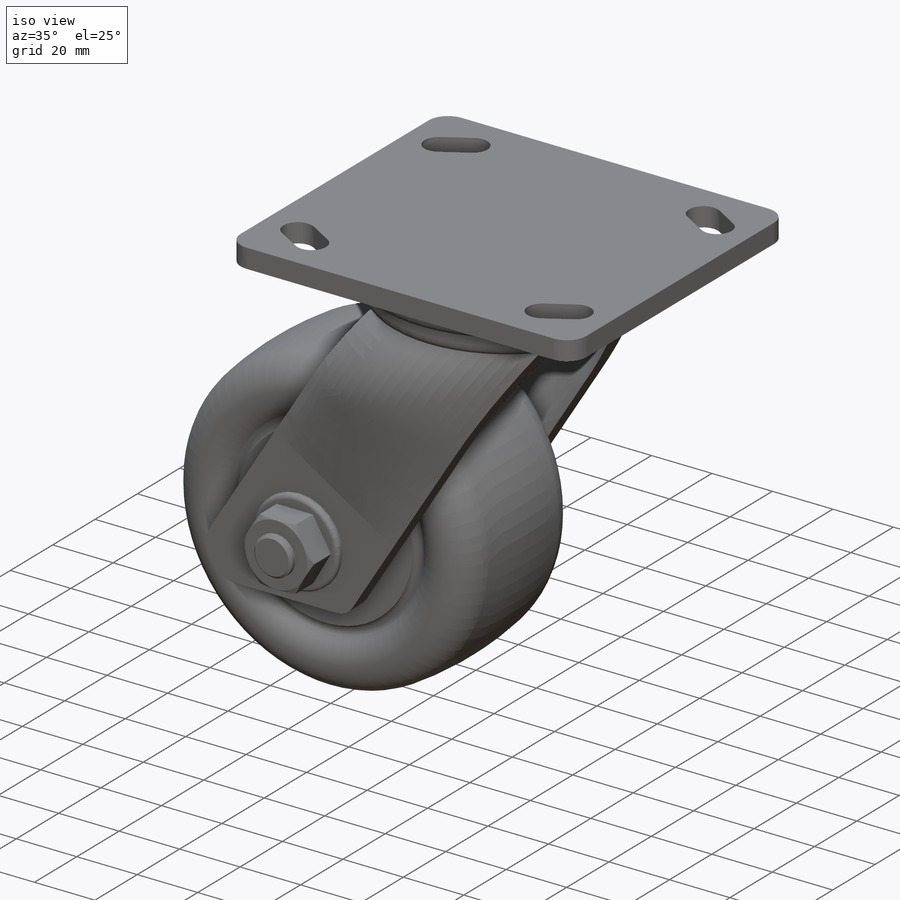
[diagram: iso view]
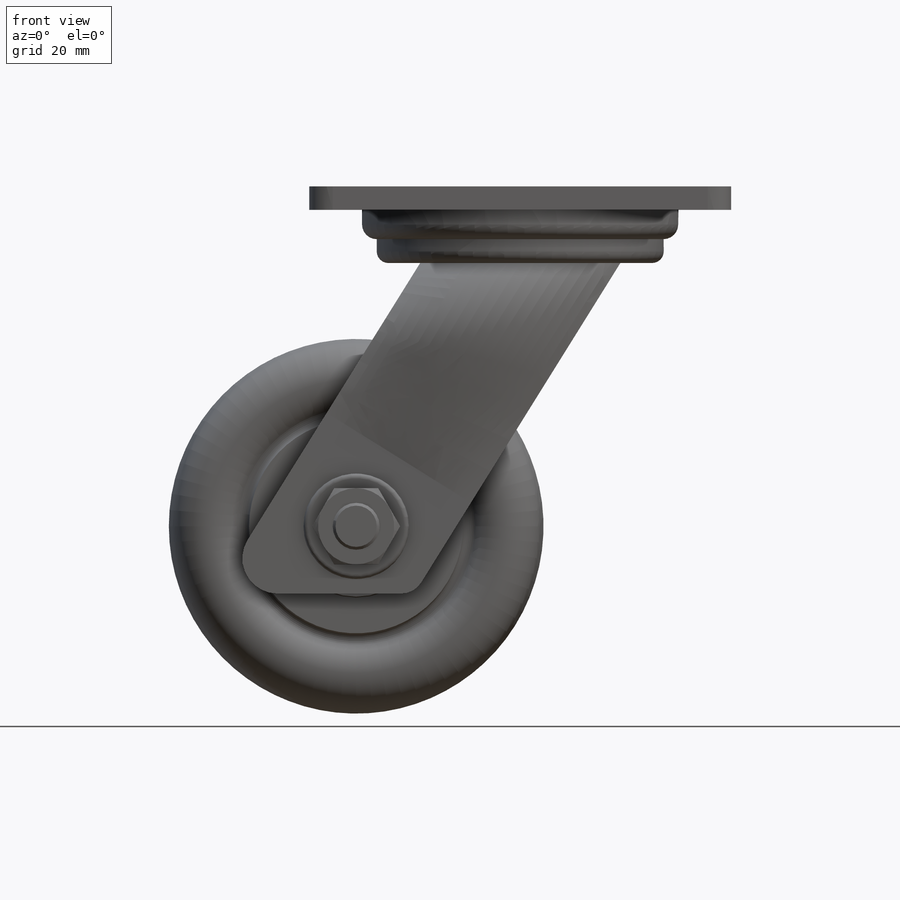
[diagram: front view]
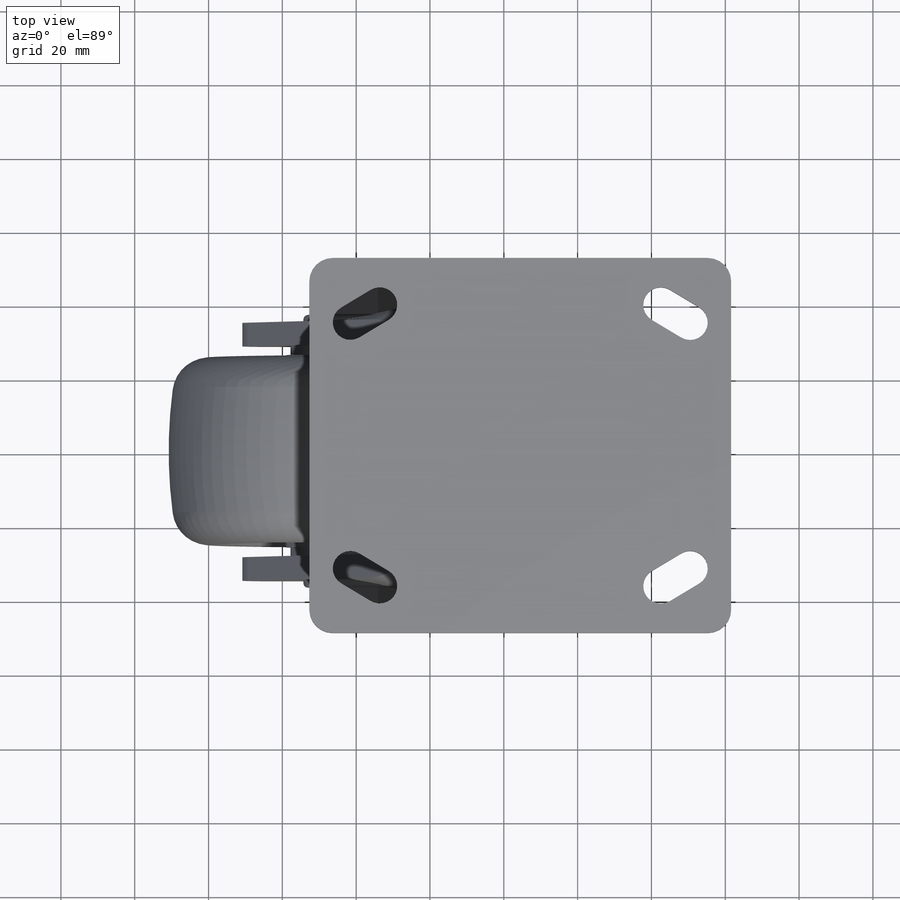
[diagram: top view]
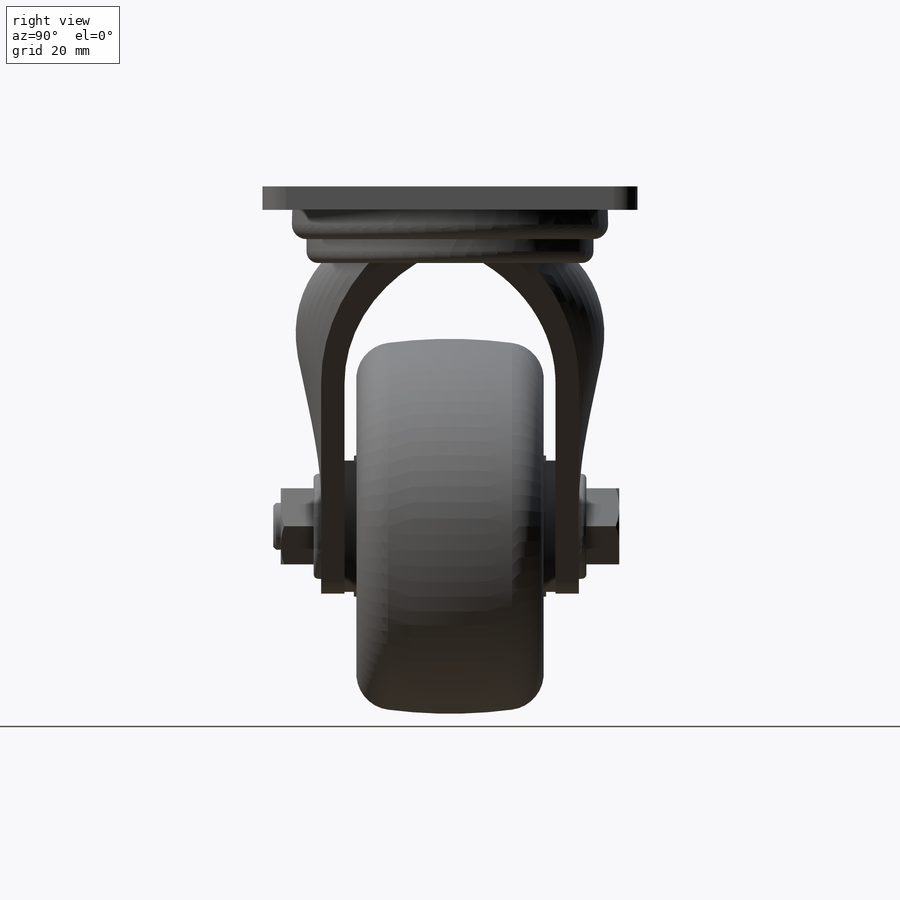
[diagram: right view]
SOLIDWORKS PART (.sldprt)
format: sldprt  version: not decoded by parser v0  size: 1,020,416 bytes
history: native  units: mm
features: sketch x21, extrude x7, plane x4, cut_extrude x3, fillet x3, revolve x2, chamfer x2, material x1, mirror x1, boolean_combine x1 (+13 scaffold rows collapsed)
feature tree (58):
  scaffold x13  (default folders/planes/origin — collapsed)
  material  "AISI 304"
  sketch  "Sketch1"  dims[wheel diameter=101.6mm overall height=142.875mm swivel offset=50.8mm D1=92.075mm center angle=~21.630887deg Swivel Radius=95.25mm]
  sketch  "Sketch69"  dims[D1=50.8mm]
  sketch  "Sketch2"  dims[D1=6.35mm D2=114.3mm]
  extrude  "Extrude1"  Depth=101.6mm
  sketch  "Sketch3"  dims[D1=9.525mm D2=66.675mm D3=76.2mm D4=92.075mm D5=76.2mm]
  cut_extrude  "Cut-Extrude1"  Depth=6.35mm
  fillet  "Fillet1"  Radius=6.35mm
  sketch  "Sketch4"  dims[c1.D7=2.3749mm c1.D8=9.144mm c1.D1=1.524mm c1.D2=1.524mm c1.D3=2.54mm c1.D4=44.45mm c1.D5=6.35mm c1.D6=22.86mm c2.D7=3.302mm c2.D2=3.302mm c2.D1=4.7625mm c3.D2=9.525mm c3.D3=3.175mm c3.D5=9.525mm c3.D9=1.143mm c4.D3=4.7625mm c4.D6=19.05mm c4.D1=85.725mm c5.D3=3.175mm c5.D4=12.065mm c5.D2=7.9375mm c5.D1=85.725mm c6.D3=3.9624mm c6.D4=~6.472106mm]
  revolve  "Revolve1"  Angle=360deg
  plane  "Plane7"  Offset=34.925mm
  sketch  "Sketch20"  dims[c1.D1=50.8mm c1.D2=36.5125mm c1.D3=63.5mm c1.D7=9.525mm c1.D8=6.35mm c2.D3=~54.721589mm c3.D3=22.5deg c3.D4=~99.050332mm c4.D4=22.5deg c5.D4=~230.10786mm c6.D4=22.5deg c6.D5=~67.378543mm c6.D6=25.4mm c6.D7=25.4mm c7.D4=3.175mm c7.D5=15.875mm c8.D4=21.59mm c8.D5=~84.052529mm c9.D5=55.0deg c9.D4=~62.92026mm c10.D4=10.0deg c10.D5=46.0375mm c10.D6=19.05mm c11.D4=46.0375mm]
  extrude  "Extrude6"  Depth=6.35mm
  sketch  "Sketch57"
  sketch  "Sketch58"  dims[D1=0.0mm]
  plane  "Plane13"
  sketch  "Sketch60"  dims[D1=~47.818773mm D2=~23.909386mm]
  sketch  "Sketch62"  dims[D1=~47.818773mm D2=~23.909386mm]
  plane  "Plane14"
  sketch  "Sketch63"  dims[D1=~76.513375mm D2=~38.256687mm]
  sketch  "Sketch64"  dims[D1=~76.513375mm D2=~38.256687mm]
  plane  "Plane15"
  sketch  "Sketch66"
  fillet  "Fillet8"  Radius=3.175mm
  sketch  "Sketch31"  dims[D1=12.7mm]
  extrude  "Extrude10"  [1 undecoded]
  sketch  "Sketch32"  dims[D1=28.575mm]
  extrude  "Extrude11"  Depth=2.032mm
  fillet  "Fillet7"  Radius=1.27mm
  sketch  "Sketch33"  dims[D1=20.6375mm]
  extrude  "Extrude12"  Depth=8.89mm
  sketch  "Sketch68"
  cut_extrude  "Cut-Extrude15"  [1 undecoded]
  mirror  "Mirror3"
  boolean_combine  "Combine2"
  sketch  "Sketch53"  dims[D1=12.7mm]
  extrude  "Extrude17"  Depth=2.032mm
  chamfer  "Chamfer1"  Distance=0.762mm Angle=45deg
  sketch  "Sketch54"  dims[D1=9.525mm]
  cut_extrude  "Cut-Extrude13"  Depth=6.35mm
  sketch  "Sketch55"  dims[D1=0.0mm]
  extrude  "Extrude18"  Depth=3.175mm
  chamfer  "Chamfer2"  Distance=0.508mm Angle=45deg
  sketch  "Sketch50"  dims[c1.D12=6.35mm c1.D9=1.9304mm c1.D1=101.6mm c1.D2=25.4mm c1.D3=2.54mm c1.D4=28.575mm c1.D5=17.78mm c1.D6=19.05mm c1.D7=2.54mm c1.D8=~20.551869mm c2.D8=5.0deg c2.D9=~16.929372mm c3.D9=5.0deg c3.D10=15.875mm c3.D11=15.24mm c4.D10=2.54mm c4.D12=10.922mm c4.D13=1.5875mm]
  revolve  "poly"  Angle=360deg
decode coverage: 33 of 40 modeling features carry decoded parameters
note: ~ marks probable driven/reference dimensions
note: 2 parameter values undecoded
note: suppression state not decoded; provenance and decode notes live in map.json
